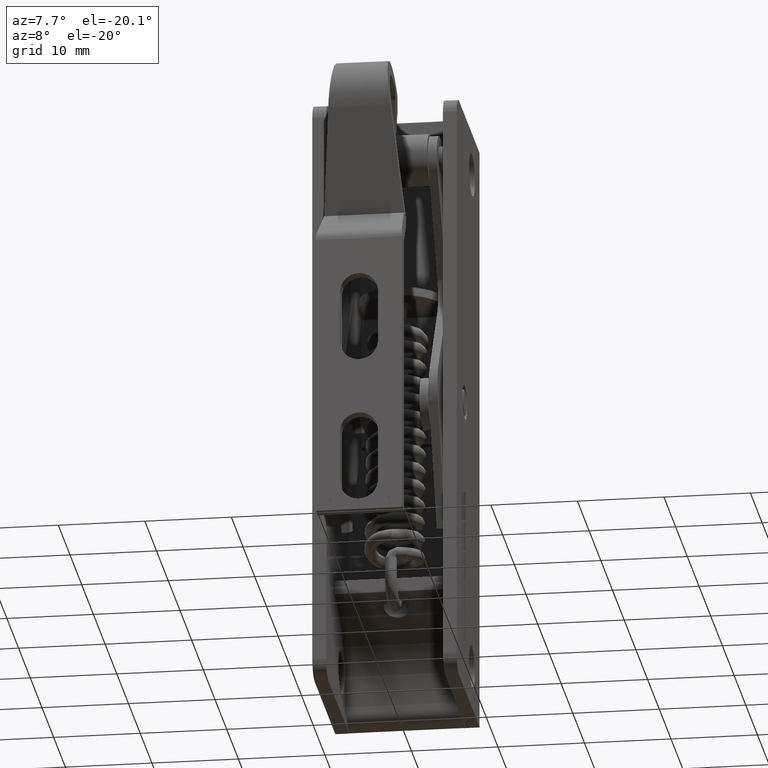
[diagram: clean part render]
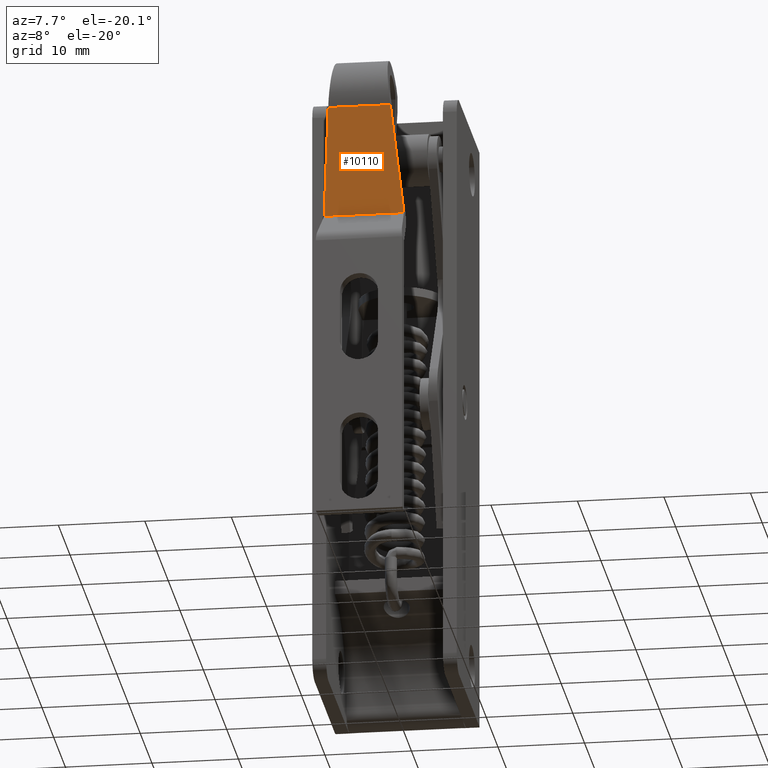
[diagram: same view with one face highlighted and labeled with its STEP entity id]
A machine part, auxiliary view. The second image highlights one B-rep face of the part: STEP entity #10110.
In plain terms, the highlighted face is a freeform B-spline surface patch.
Its self-contained STEP definition (entity closure, byte-faithful):
#9396=CARTESIAN_POINT('',(3.589329301295790,-34.616174055862437,-3.777643464900325));
#9397=VERTEX_POINT('',#9396);
#9413=CARTESIAN_POINT('',(4.608663649067720,-30.499985050658900,-15.499988464276001));
#9414=VERTEX_POINT('',#9413);
#9415=CARTESIAN_POINT('',(3.589329301295790,-34.616174055862437,-3.777643464900325));
#9416=CARTESIAN_POINT('',(4.608663649067720,-30.499985050658900,-15.499988464276001));
#9417=QUASI_UNIFORM_CURVE('',1,(#9415,#9416),.UNSPECIFIED.,.F.,.U.);
#9418=EDGE_CURVE('',#9397,#9414,#9417,.T.);
#10072=CARTESIAN_POINT('',(-4.608725649067351,-30.499985050658900,-15.499988464276001));
#10073=VERTEX_POINT('',#10072);
#10081=CARTESIAN_POINT('',(-4.608725649067351,-30.499985050658900,-15.499988464276001));
#10082=CARTESIAN_POINT('',(4.608663649067720,-30.499985050658900,-15.499988464276001));
#10083=QUASI_UNIFORM_CURVE('',1,(#10081,#10082),.UNSPECIFIED.,.F.,.U.);
#10084=EDGE_CURVE('',#10073,#9414,#10083,.T.);
#10089=CARTESIAN_POINT('',(-5.069134140117853,-34.821777572774870,-3.192112685024651));
#10090=CARTESIAN_POINT('',(-5.069134140117853,-30.294381312936881,-16.085519872987259));
#10091=CARTESIAN_POINT('',(5.069072469757749,-34.821777572774877,-3.192112685024651));
#10092=CARTESIAN_POINT('',(5.069072469757749,-30.294381312936881,-16.085519872987259));
#10093=B_SPLINE_SURFACE_WITH_KNOTS('',1,1,((#10089,#10091),(#10090,#10092)),.UNSPECIFIED.,.F.,.F.,.U.,(2,2),(2,2),(0.0,13.665184441060459),(0.0,10.138206609875599),.UNSPECIFIED.);
#10094=CARTESIAN_POINT('',(-3.589391301295550,-34.616174055862437,-3.777643464900325));
#10095=VERTEX_POINT('',#10094);
#10096=CARTESIAN_POINT('',(-4.608725649067351,-30.499985050658900,-15.499988464276001));
#10097=CARTESIAN_POINT('',(-3.589391301295550,-34.616174055862437,-3.777643464900325));
#10098=QUASI_UNIFORM_CURVE('',1,(#10096,#10097),.UNSPECIFIED.,.F.,.U.);
#10099=EDGE_CURVE('',#10073,#10095,#10098,.T.);
#10100=ORIENTED_EDGE('',*,*,#10099,.F.);
#10101=ORIENTED_EDGE('',*,*,#10084,.T.);
#10102=ORIENTED_EDGE('',*,*,#9418,.F.);
#10103=CARTESIAN_POINT('',(-3.589391301295550,-34.616174055862437,-3.777643464900325));
#10104=CARTESIAN_POINT('',(3.589329301295790,-34.616174055862437,-3.777643464900325));
#10105=QUASI_UNIFORM_CURVE('',1,(#10103,#10104),.UNSPECIFIED.,.F.,.U.);
#10106=EDGE_CURVE('',#10095,#9397,#10105,.T.);
#10107=ORIENTED_EDGE('',*,*,#10106,.F.);
#10108=EDGE_LOOP('',(#10100,#10101,#10102,#10107));
#10109=FACE_OUTER_BOUND('',#10108,.T.);
#10110=ADVANCED_FACE('',(#10109),#10093,.T.);